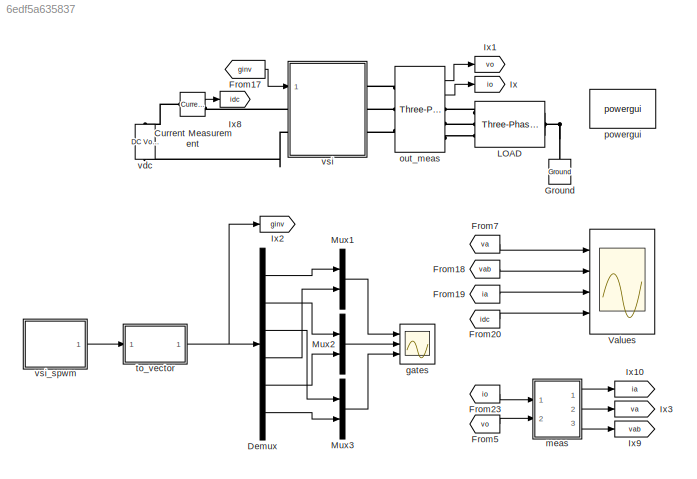
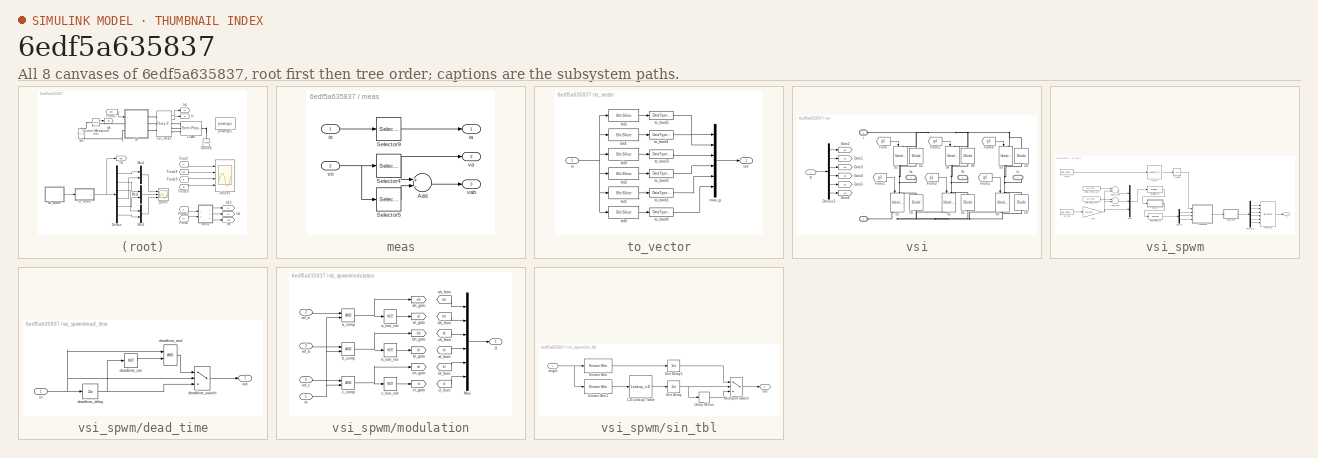
[diagram: thumbnail index - all 8 canvases of the model, root first then tree order]
MODEL slx_6edf5a635837
KIND model
CONFIG AbsTol = auto
CONFIG EnableMultiTasking = off
CONFIG FixedStep = cfg.fpga.ts
CONFIG InitFcn = vsi_spwm_config;
CONFIG MaxStep = auto
CONFIG MinStep = auto
CONFIG PreLoadFcn = vsi_spwm_config;
CONFIG RelTol = 1e-3
CONFIG SampleTimeConstraint = Unconstrained
CONFIG Solver = FixedStepDiscrete
CONFIG SolverName = FixedStepDiscrete
CONFIG StartTime = 0.0
CONFIG StopTime = 2/cfg.fl
BLOCK [Reference] Current Measurement  REF=powerlib/Measurements/Current Measurement
  Ports = [0, 1, 0, 0, 0, 1, 1]
  SourceBlock = powerlib/Measurements/Current Measurement
  SourceProductBaseCode = PS
  SourceProductName = Simscape Power Systems
  SourceType = Current Measurement
  UserDataPersistent = on
BLOCK [Demux] Demux
  DisplayOption = bar
  Outputs = 6
  Ports = [1, 6]
BLOCK [From] From17
  GotoTag = ginv
BLOCK [From] From18
  GotoTag = vab
BLOCK [From] From19
  GotoTag = ia
BLOCK [From] From20
  GotoTag = idc
BLOCK [From] From23
  GotoTag = io
BLOCK [From] From5
  GotoTag = vo
BLOCK [From] From7
  GotoTag = va
BLOCK [Reference] Ground  REF=powerlib/Elements/Ground
  Ports = [0, 0, 0, 0, 0, 1]
  SourceBlock = powerlib/Elements/Ground
  SourceProductBaseCode = PS
  SourceProductName = Simscape Power Systems
  SourceType = Ground
BLOCK [Goto] Ix
  GotoTag = io
BLOCK [Goto] Ix1
  GotoTag = vo
BLOCK [Goto] Ix10
  GotoTag = ia
BLOCK [Goto] Ix2
  GotoTag = ginv
BLOCK [Goto] Ix3
  GotoTag = va
BLOCK [Goto] Ix8
  GotoTag = idc
BLOCK [Goto] Ix9
  GotoTag = vab
BLOCK [Reference] LOAD  REF=powerlib/Elements/Three-Phase
Series RLC Branch
  AttributesFormatString = \n
  Ports = [0, 0, 0, 0, 0, 3, 3]
  SourceBlock = powerlib/Elements/Three-Phase\nSeries RLC Branch
  SourceProductBaseCode = PS
  SourceProductName = Simscape Power Systems
  SourceType = Three-Phase Series RLC Branch
BLOCK [Mux] Mux1
  DisplayOption = bar
  Inputs = 2
  Ports = [2, 1]
BLOCK [Mux] Mux2
  DisplayOption = bar
  Inputs = 2
  Ports = [2, 1]
BLOCK [Mux] Mux3
  DisplayOption = bar
  Inputs = 2
  Ports = [2, 1]
BLOCK [Scope] Values
  Floating = off
  NumInputPorts = 4
  Ports = [4]
  ScopeSpecificationString = Simulink.scopes.TimeScopeBlockCfg('CurrentConfiguration', extmgr.ConfigurationSet(extmgr.Configuration('Core','General UI',true),extmgr.Configuration('Core','Source UI',true),extmgr.Configuration('Sources','WiredSimulink',true,'DataLoggingVariableName','ScopeData1'),extmgr.Configuration('Visuals','Time Domain',true,'SerializedDisplays',{struct('MinYLimReal','-83.33158','MaxYLimReal','83.33159','YL...<+3460ch>
BLOCK [Scope] gates
  Floating = off
  NumInputPorts = 3
  Ports = [3]
  ScopeSpecificationString = Simulink.scopes.TimeScopeBlockCfg('CurrentConfiguration', extmgr.ConfigurationSet(extmgr.Configuration('Core','General UI',true),extmgr.Configuration('Core','Source UI',true),extmgr.Configuration('Sources','WiredSimulink',true,'DataLoggingVariableName','ScopeData2'),extmgr.Configuration('Visuals','Time Domain',true,'SerializedDisplays',{struct('MinYLimReal','-0.125','MaxYLimReal','1.125','YLabelRe...<+2784ch>
BLOCK [SubSystem] meas
  Ports = [2, 3]
  RequestExecContextInheritance = off
BLOCK [Sum] meas/Add
  InputSameDT = off
  Inputs = +-
  OutDataTypeStr = Inherit: Inherit via internal rule
  Ports = [2, 1]
  SaturateOnIntegerOverflow = off
BLOCK [Selector] meas/Selector4
  IndexOptions = Index vector (dialog)
  Indices = 1
  InputPortWidth = 3
  OutputSizes = 1
  Ports = [1, 1]
BLOCK [Selector] meas/Selector5
  IndexOptions = Index vector (dialog)
  Indices = 2
  InputPortWidth = 3
  OutputSizes = 1
  Ports = [1, 1]
BLOCK [Selector] meas/Selector9
  IndexOptions = Index vector (dialog)
  Indices = 1
  InputPortWidth = 3
  OutputSizes = 1
  Ports = [1, 1]
BLOCK [Outport] meas/ia
  IconDisplay = Port number
BLOCK [Inport] meas/io
  IconDisplay = Port number
BLOCK [Outport] meas/va
  IconDisplay = Port number
  Port = 2
BLOCK [Outport] meas/vab
  IconDisplay = Port number
  Port = 3
BLOCK [Inport] meas/vo
  IconDisplay = Port number
  Port = 2
BLOCK [Reference] out_meas  REF=powerlib/Measurements/Three-Phase
V-I Measurement
  Ports = [0, 2, 0, 0, 0, 3, 3]
  SourceBlock = powerlib/Measurements/Three-Phase\nV-I Measurement
  SourceProductBaseCode = PS
  SourceProductName = Simscape Power Systems
  SourceType = Three-Phase VI Measurement
BLOCK [Reference] powergui  REF=powerlib/powergui
  Ports = []
  Priority = 1
  SourceBlock = powerlib/powergui
  SourceProductBaseCode = PS
  SourceProductName = Simscape Power Systems
  SourceType = PSB option menu block
BLOCK [SubSystem] to_vector
  Ports = [1, 1]
  RequestExecContextInheritance = off
BLOCK [Reference] to_vector/bit0  REF=hdlsllib/Logic and Bit
Operations/Bit Slice
  Ports = [1, 1]
  SourceBlock = hdlsllib/Logic and Bit\nOperations/Bit Slice
  SourceProductBaseCode = HD
  SourceProductName = HDL Coder
  SourceType = Bit Slice
BLOCK [Reference] to_vector/bit1  REF=hdlsllib/Logic and Bit
Operations/Bit Slice
  Ports = [1, 1]
  SourceBlock = hdlsllib/Logic and Bit\nOperations/Bit Slice
  SourceProductBaseCode = HD
  SourceProductName = HDL Coder
  SourceType = Bit Slice
BLOCK [Reference] to_vector/bit2  REF=hdlsllib/Logic and Bit
Operations/Bit Slice
  Ports = [1, 1]
  SourceBlock = hdlsllib/Logic and Bit\nOperations/Bit Slice
  SourceProductBaseCode = HD
  SourceProductName = HDL Coder
  SourceType = Bit Slice
BLOCK [Reference] to_vector/bit3  REF=hdlsllib/Logic and Bit
Operations/Bit Slice
  Ports = [1, 1]
  SourceBlock = hdlsllib/Logic and Bit\nOperations/Bit Slice
  SourceProductBaseCode = HD
  SourceProductName = HDL Coder
  SourceType = Bit Slice
BLOCK [Reference] to_vector/bit4  REF=hdlsllib/Logic and Bit
Operations/Bit Slice
  Ports = [1, 1]
  SourceBlock = hdlsllib/Logic and Bit\nOperations/Bit Slice
  SourceProductBaseCode = HD
  SourceProductName = HDL Coder
  SourceType = Bit Slice
BLOCK [Reference] to_vector/bit5  REF=hdlsllib/Logic and Bit
Operations/Bit Slice
  Ports = [1, 1]
  SourceBlock = hdlsllib/Logic and Bit\nOperations/Bit Slice
  SourceProductBaseCode = HD
  SourceProductName = HDL Coder
  SourceType = Bit Slice
BLOCK [Inport] to_vector/in
  IconDisplay = Port number
BLOCK [Mux] to_vector/mux_g
  DisplayOption = bar
  Inputs = 6
  Ports = [6, 1]
BLOCK [Outport] to_vector/out
  IconDisplay = Port number
BLOCK [DataTypeConversion] to_vector/to_bool0
  OutDataTypeStr = boolean
  RndMeth = Floor
  SaturateOnIntegerOverflow = off
BLOCK [DataTypeConversion] to_vector/to_bool1
  OutDataTypeStr = boolean
  RndMeth = Floor
  SaturateOnIntegerOverflow = off
BLOCK [DataTypeConversion] to_vector/to_bool2
  OutDataTypeStr = boolean
  RndMeth = Floor
  SaturateOnIntegerOverflow = off
BLOCK [DataTypeConversion] to_vector/to_bool3
  OutDataTypeStr = boolean
  RndMeth = Floor
  SaturateOnIntegerOverflow = off
BLOCK [DataTypeConversion] to_vector/to_bool4
  OutDataTypeStr = boolean
  RndMeth = Floor
  SaturateOnIntegerOverflow = off
BLOCK [DataTypeConversion] to_vector/to_bool5
  OutDataTypeStr = boolean
  RndMeth = Floor
  SaturateOnIntegerOverflow = off
BLOCK [Reference] vdc  REF=powerlib/Electrical
Sources/DC Voltage Source
  Ports = [0, 0, 0, 0, 0, 1, 1]
  SourceBlock = powerlib/Electrical\nSources/DC Voltage Source
  SourceProductBaseCode = PS
  SourceProductName = Simscape Power Systems
  SourceType = DC Voltage Source
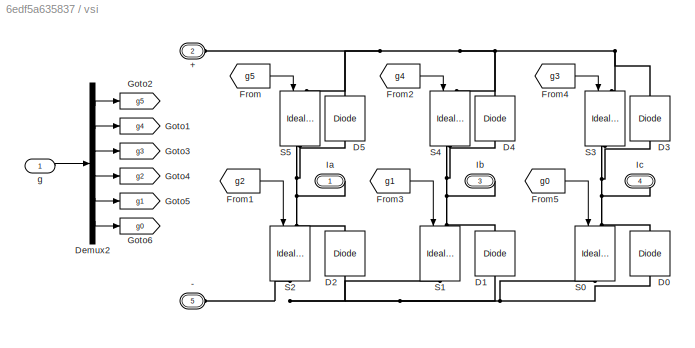
BLOCK [SubSystem] vsi
  Ports = [1, 0, 0, 0, 0, 2, 3]
  RequestExecContextInheritance = off
BLOCK [PMIOPort] vsi/+
  Port = 2
  Side = Left
BLOCK [PMIOPort] vsi/-
  Port = 5
  Side = Left
BLOCK [Reference] vsi/D0  REF=powerlib/Power
Electronics/Diode
  Ports = [0, 0, 0, 0, 0, 1, 1]
  SourceBlock = powerlib/Power\nElectronics/Diode
  SourceProductBaseCode = PS
  SourceProductName = Simscape Power Systems
  SourceType = Diode
BLOCK [Reference] vsi/D1  REF=powerlib/Power
Electronics/Diode
  Ports = [0, 0, 0, 0, 0, 1, 1]
  SourceBlock = powerlib/Power\nElectronics/Diode
  SourceProductBaseCode = PS
  SourceProductName = Simscape Power Systems
  SourceType = Diode
BLOCK [Reference] vsi/D2  REF=powerlib/Power
Electronics/Diode
  Ports = [0, 0, 0, 0, 0, 1, 1]
  SourceBlock = powerlib/Power\nElectronics/Diode
  SourceProductBaseCode = PS
  SourceProductName = Simscape Power Systems
  SourceType = Diode
BLOCK [Reference] vsi/D3  REF=powerlib/Power
Electronics/Diode
  Ports = [0, 0, 0, 0, 0, 1, 1]
  SourceBlock = powerlib/Power\nElectronics/Diode
  SourceProductBaseCode = PS
  SourceProductName = Simscape Power Systems
  SourceType = Diode
BLOCK [Reference] vsi/D4  REF=powerlib/Power
Electronics/Diode
  Ports = [0, 0, 0, 0, 0, 1, 1]
  SourceBlock = powerlib/Power\nElectronics/Diode
  SourceProductBaseCode = PS
  SourceProductName = Simscape Power Systems
  SourceType = Diode
BLOCK [Reference] vsi/D5  REF=powerlib/Power
Electronics/Diode
  Ports = [0, 0, 0, 0, 0, 1, 1]
  SourceBlock = powerlib/Power\nElectronics/Diode
  SourceProductBaseCode = PS
  SourceProductName = Simscape Power Systems
  SourceType = Diode
BLOCK [Demux] vsi/Demux2
  DisplayOption = bar
  Outputs = 6
  Ports = [1, 6]
BLOCK [From] vsi/From
  GotoTag = g5
BLOCK [From] vsi/From1
  GotoTag = g2
BLOCK [From] vsi/From2
  GotoTag = g4
BLOCK [From] vsi/From3
  GotoTag = g1
BLOCK [From] vsi/From4
  GotoTag = g3
BLOCK [From] vsi/From5
  GotoTag = g0
BLOCK [Goto] vsi/Goto1
  GotoTag = g4
BLOCK [Goto] vsi/Goto2
  GotoTag = g5
BLOCK [Goto] vsi/Goto3
  GotoTag = g3
BLOCK [Goto] vsi/Goto4
  GotoTag = g2
BLOCK [Goto] vsi/Goto5
  GotoTag = g1
BLOCK [Goto] vsi/Goto6
  GotoTag = g0
BLOCK [PMIOPort] vsi/Ia
  Side = Right
BLOCK [PMIOPort] vsi/Ib
  Port = 3
  Side = Right
BLOCK [PMIOPort] vsi/Ic
  Port = 4
  Side = Right
BLOCK [Reference] vsi/S0  REF=powerlib/Power
Electronics/Ideal Switch
  Ports = [1, 0, 0, 0, 0, 1, 1]
  SourceBlock = powerlib/Power\nElectronics/Ideal Switch
  SourceProductBaseCode = PS
  SourceProductName = Simscape Power Systems
  SourceType = Ideal Switch
BLOCK [Reference] vsi/S1  REF=powerlib/Power
Electronics/Ideal Switch
  Ports = [1, 0, 0, 0, 0, 1, 1]
  SourceBlock = powerlib/Power\nElectronics/Ideal Switch
  SourceProductBaseCode = PS
  SourceProductName = Simscape Power Systems
  SourceType = Ideal Switch
BLOCK [Reference] vsi/S2  REF=powerlib/Power
Electronics/Ideal Switch
  Ports = [1, 0, 0, 0, 0, 1, 1]
  SourceBlock = powerlib/Power\nElectronics/Ideal Switch
  SourceProductBaseCode = PS
  SourceProductName = Simscape Power Systems
  SourceType = Ideal Switch
BLOCK [Reference] vsi/S3  REF=powerlib/Power
Electronics/Ideal Switch
  Ports = [1, 0, 0, 0, 0, 1, 1]
  SourceBlock = powerlib/Power\nElectronics/Ideal Switch
  SourceProductBaseCode = PS
  SourceProductName = Simscape Power Systems
  SourceType = Ideal Switch
BLOCK [Reference] vsi/S4  REF=powerlib/Power
Electronics/Ideal Switch
  Ports = [1, 0, 0, 0, 0, 1, 1]
  SourceBlock = powerlib/Power\nElectronics/Ideal Switch
  SourceProductBaseCode = PS
  SourceProductName = Simscape Power Systems
  SourceType = Ideal Switch
BLOCK [Reference] vsi/S5  REF=powerlib/Power
Electronics/Ideal Switch
  Ports = [1, 0, 0, 0, 0, 1, 1]
  SourceBlock = powerlib/Power\nElectronics/Ideal Switch
  SourceProductBaseCode = PS
  SourceProductName = Simscape Power Systems
  SourceType = Ideal Switch
BLOCK [Inport] vsi/g
  IconDisplay = Port number
BLOCK [SubSystem] vsi_spwm
  Ports = [0, 1]
  RequestExecContextInheritance = off
BLOCK [Demux] vsi_spwm/Demux
  DisplayOption = bar
  Outputs = 3
  Ports = [1, 3]
BLOCK [Reference] vsi_spwm/Deserializer1D  REF=hdlsllib/HDL Operations/Deserializer1D
  Ports = [1, 1]
  SourceBlock = hdlsllib/HDL Operations/Deserializer1D
  SourceProductBaseCode = HD
  SourceProductName = HDL Coder
  SourceType = Deserializer1D
BLOCK [Gain] vsi_spwm/Gain
  Gain = cfg.ref.factor
  OutDataTypeStr = fixdt(0,cfg.ref.n,0)
  ParamDataTypeStr = Inherit: Inherit via internal rule
  SaturateOnIntegerOverflow = off
BLOCK [Mux] vsi_spwm/Mux
  DisplayOption = bar
  Inputs = 3
  Ports = [3, 1]
BLOCK [Reference] vsi_spwm/Serializer1D  REF=hdlsllib/HDL Operations/Serializer1D
  Ports = [1, 1]
  SourceBlock = hdlsllib/HDL Operations/Serializer1D
  SourceProductBaseCode = HD
  SourceProductName = HDL Coder
  SourceType = Serializer1D
BLOCK [Sum] vsi_spwm/add_m120
  AccumDataTypeStr = Inherit: Same as first input
  InputSameDT = off
  OutDataTypeStr = Inherit: Same as accumulator
  Ports = [2, 1]
  SaturateOnIntegerOverflow = off
BLOCK [Sum] vsi_spwm/add_p120
  AccumDataTypeStr = Inherit: Same as first input
  InputSameDT = off
  OutDataTypeStr = Inherit: Same as accumulator
  Ports = [2, 1]
  SaturateOnIntegerOverflow = off
BLOCK [Reference] vsi_spwm/concat_g  REF=hdlsllib/Logic and Bit
Operations/Bit Concat
  Ports = [6, 1]
  SourceBlock = hdlsllib/Logic and Bit\nOperations/Bit Concat
  SourceProductBaseCode = HD
  SourceProductName = HDL Coder
  SourceType = Bit Concat
BLOCK [SubSystem] vsi_spwm/dead_time
  Ports = [1, 1]
  RequestExecContextInheritance = off
BLOCK [Logic] vsi_spwm/dead_time/deadtime_and
  AllPortsSameDT = off
  OutDataTypeStr = boolean
  Ports = [2, 1]
BLOCK [UnitDelay] vsi_spwm/dead_time/deadtime_delay
  InputProcessing = Elements as channels (sample based)
  SampleTime = -1
BLOCK [Logic] vsi_spwm/dead_time/deadtime_not
  AllPortsSameDT = off
  Operator = NOT
  OutDataTypeStr = boolean
  Ports = [1, 1]
BLOCK [MultiPortSwitch] vsi_spwm/dead_time/deadtime_switch
  DataPortOrder = Zero-based contiguous
  InputSameDT = off
  Inputs = 2
  Ports = [3, 1]
  SaturateOnIntegerOverflow = off
  zeroidx = on
BLOCK [Inport] vsi_spwm/dead_time/in
  IconDisplay = Port number
BLOCK [Outport] vsi_spwm/dead_time/out
  IconDisplay = Port number
BLOCK [Constant] vsi_spwm/delay_minus_120
  OutDataTypeStr = fixdt(0,cfg.ref.n,0)
  SampleTime = -1
  Value = 2/3*2^cfg.ref.n
BLOCK [Constant] vsi_spwm/delay_plus_smd
  OutDataTypeStr = fixdt(0,cfg.ref.n,0)
  SampleTime = -1
  Value = 1/3*2^cfg.ref.n
BLOCK [Demux] vsi_spwm/demux_g
  DisplayOption = bar
  Outputs = 6
  Ports = [1, 6]
BLOCK [Outport] vsi_spwm/g
  IconDisplay = Port number
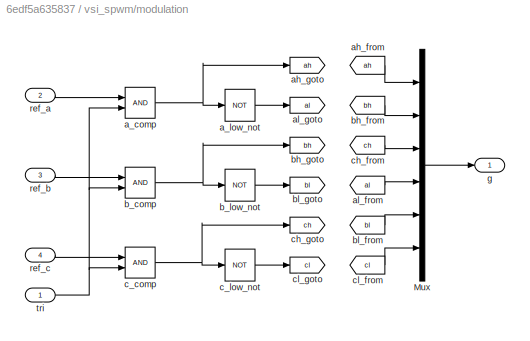
BLOCK [SubSystem] vsi_spwm/modulation
  Ports = [4, 1]
  RequestExecContextInheritance = off
BLOCK [Mux] vsi_spwm/modulation/Mux
  DisplayOption = bar
  Inputs = 6
  Ports = [6, 1]
BLOCK [RelationalOperator] vsi_spwm/modulation/a_comp
  InputSameDT = off
  OutDataTypeStr = boolean
  Ports = [2, 1]
BLOCK [Logic] vsi_spwm/modulation/a_low_not
  AllPortsSameDT = off
  Operator = NOT
  OutDataTypeStr = boolean
  Ports = [1, 1]
BLOCK [From] vsi_spwm/modulation/ah_from
  GotoTag = ah
BLOCK [Goto] vsi_spwm/modulation/ah_goto
  GotoTag = ah
BLOCK [From] vsi_spwm/modulation/al_from
  GotoTag = al
BLOCK [Goto] vsi_spwm/modulation/al_goto
  GotoTag = al
BLOCK [RelationalOperator] vsi_spwm/modulation/b_comp
  InputSameDT = off
  OutDataTypeStr = boolean
  Ports = [2, 1]
BLOCK [Logic] vsi_spwm/modulation/b_low_not
  AllPortsSameDT = off
  Operator = NOT
  OutDataTypeStr = boolean
  Ports = [1, 1]
BLOCK [From] vsi_spwm/modulation/bh_from
  GotoTag = bh
BLOCK [Goto] vsi_spwm/modulation/bh_goto
  GotoTag = bh
BLOCK [From] vsi_spwm/modulation/bl_from
  GotoTag = bl
BLOCK [Goto] vsi_spwm/modulation/bl_goto
  GotoTag = bl
BLOCK [RelationalOperator] vsi_spwm/modulation/c_comp
  InputSameDT = off
  OutDataTypeStr = boolean
  Ports = [2, 1]
BLOCK [Logic] vsi_spwm/modulation/c_low_not
  AllPortsSameDT = off
  Operator = NOT
  OutDataTypeStr = boolean
  Ports = [1, 1]
BLOCK [From] vsi_spwm/modulation/ch_from
  GotoTag = ch
BLOCK [Goto] vsi_spwm/modulation/ch_goto
  GotoTag = ch
BLOCK [From] vsi_spwm/modulation/cl_from
  GotoTag = cl
BLOCK [Goto] vsi_spwm/modulation/cl_goto
  GotoTag = cl
BLOCK [Outport] vsi_spwm/modulation/g
  IconDisplay = Port number
BLOCK [Inport] vsi_spwm/modulation/ref_a
  IconDisplay = Port number
  Port = 2
BLOCK [Inport] vsi_spwm/modulation/ref_b
  IconDisplay = Port number
  Port = 3
BLOCK [Inport] vsi_spwm/modulation/ref_c
  IconDisplay = Port number
  Port = 4
BLOCK [Inport] vsi_spwm/modulation/tri
  IconDisplay = Port number
BLOCK [Reference] vsi_spwm/ref_cnt  REF=hdlsllib/Sources/HDL Counter
  Ports = [0, 1]
  SourceBlock = hdlsllib/Sources/HDL Counter
  SourceProductBaseCode = HD
  SourceProductName = HDL Coder
  SourceType = HDL Counter
BLOCK [SubSystem] vsi_spwm/sin_tbl
  Ports = [1, 1]
  RequestExecContextInheritance = off
BLOCK [Lookup_n-D] vsi_spwm/sin_tbl/1-D Lookup Table
  BreakpointsForDimension1 = [0:length(cfg.ref.data)-1]
  BreakpointsForDimension1FirstPoint = 10
  BreakpointsForDimension1Spacing = 12
  BreakpointsForDimension2FirstPoint = 10
  BreakpointsForDimension2Spacing = 12
  DiagnosticForOutOfRangeInput = Error
  IndexSearchMethod = Evenly spaced points
  InternalRulePriority = Speed
  InterpMethod = Flat
  NumberOfTableDimensions = 1
  OutDataTypeStr = fixdt(1,cfg.ref.out_n,cfg.ref.out_n_bp)
  Ports = [1, 1]
  RndMeth = Simplest
  Table = cfg.ref.data
BLOCK [Reference] vsi_spwm/sin_tbl/Extract Bits  REF=simulink/Logic and Bit
Operations/Extract Bits
  Ports = [1, 1]
  SourceBlock = simulink/Logic and Bit\nOperations/Extract Bits
  SourceProductBaseCode = SL
  SourceProductName = Simulink
  SourceType = Extract Bits
BLOCK [Reference] vsi_spwm/sin_tbl/Extract Bits1  REF=simulink/Logic and Bit
Operations/Extract Bits
  Ports = [1, 1]
  SourceBlock = simulink/Logic and Bit\nOperations/Extract Bits
  SourceProductBaseCode = SL
  SourceProductName = Simulink
  SourceType = Extract Bits
BLOCK [MultiPortSwitch] vsi_spwm/sin_tbl/Multiport Switch
  DataPortOrder = Zero-based contiguous
  InputSameDT = off
  Inputs = 2
  Ports = [3, 1]
  SaturateOnIntegerOverflow = off
  zeroidx = on
BLOCK [UnaryMinus] vsi_spwm/sin_tbl/Unary Minus
BLOCK [UnitDelay] vsi_spwm/sin_tbl/Unit Delay
  InputProcessing = Elements as channels (sample based)
  SampleTime = -1
BLOCK [UnitDelay] vsi_spwm/sin_tbl/Unit Delay1
  InputProcessing = Elements as channels (sample based)
  SampleTime = -1
BLOCK [Inport] vsi_spwm/sin_tbl/angle
  IconDisplay = Port number
BLOCK [Outport] vsi_spwm/sin_tbl/out
  IconDisplay = Port number
BLOCK [Reference] vsi_spwm/tri_cnt  REF=hdlsllib/Sources/HDL Counter
  Ports = [0, 1]
  SourceBlock = hdlsllib/Sources/HDL Counter
  SourceProductBaseCode = HD
  SourceProductName = HDL Coder
  SourceType = HDL Counter
BLOCK [UnitDelay] vsi_spwm/tri_delay
  InputProcessing = Elements as channels (sample based)
  SampleTime = -1
BLOCK [Lookup_n-D] vsi_spwm/tri_tbl
  BreakpointsForDimension1 = [0:length(cfg.tri.data)-1]
  BreakpointsForDimension1FirstPoint = 10
  BreakpointsForDimension1Spacing = 12
  BreakpointsForDimension2FirstPoint = 10
  BreakpointsForDimension2Spacing = 12
  DiagnosticForOutOfRangeInput = Error
  IndexSearchMethod = Evenly spaced points
  InternalRulePriority = Speed
  InterpMethod = Flat
  NumberOfTableDimensions = 1
  OutDataTypeStr = fixdt(1,cfg.tri.out_n,0)
  Ports = [1, 1]
  RndMeth = Simplest
  Table = cfg.tri.data
LINE Current Measurement:1 -> Ix8:1
LINE Demux:1 -> Mux1:1
LINE Demux:2 -> Mux2:1
LINE Demux:3 -> Mux3:1
LINE Demux:4 -> Mux1:2
LINE Demux:5 -> Mux2:2
LINE Demux:6 -> Mux3:2
LINE From17:1 -> vsi:1
LINE From18:1 -> Values:2
LINE From19:1 -> Values:3
LINE From20:1 -> Values:4
LINE From23:1 -> meas:1
LINE From5:1 -> meas:2
LINE From7:1 -> Values:1
LINE Mux1:1 -> gates:1
LINE Mux2:1 -> gates:2
LINE Mux3:1 -> gates:3
LINE meas/Add:1 -> meas/vab:1
NET meas/Selector4:1 -> meas/Add:1, meas/va:1
LINE meas/Selector5:1 -> meas/Add:2
LINE meas/Selector9:1 -> meas/ia:1
LINE meas/io:1 -> meas/Selector9:1
NET meas/vo:1 -> meas/Selector4:1, meas/Selector5:1
LINE meas:1 -> Ix10:1
LINE meas:2 -> Ix3:1
LINE meas:3 -> Ix9:1
LINE out_meas:1 -> Ix1:1
LINE out_meas:2 -> Ix:1
LINE to_vector/bit0:1 -> to_vector/to_bool0:1
LINE to_vector/bit1:1 -> to_vector/to_bool1:1
LINE to_vector/bit2:1 -> to_vector/to_bool2:1
LINE to_vector/bit3:1 -> to_vector/to_bool3:1
LINE to_vector/bit4:1 -> to_vector/to_bool4:1
LINE to_vector/bit5:1 -> to_vector/to_bool5:1
NET to_vector/in:1 -> to_vector/bit0:1, to_vector/bit1:1, to_vector/bit2:1, to_vector/bit3:1, to_vector/bit4:1, to_vector/bit5:1
LINE to_vector/mux_g:1 -> to_vector/out:1
LINE to_vector/to_bool0:1 -> to_vector/mux_g:6
LINE to_vector/to_bool1:1 -> to_vector/mux_g:5
LINE to_vector/to_bool2:1 -> to_vector/mux_g:4
LINE to_vector/to_bool3:1 -> to_vector/mux_g:3
LINE to_vector/to_bool4:1 -> to_vector/mux_g:2
LINE to_vector/to_bool5:1 -> to_vector/mux_g:1
NET to_vector:1 -> Demux:1, Ix2:1
LINE vsi/Demux2:1 -> vsi/Goto2:1
LINE vsi/Demux2:2 -> vsi/Goto1:1
LINE vsi/Demux2:3 -> vsi/Goto3:1
LINE vsi/Demux2:4 -> vsi/Goto4:1
LINE vsi/Demux2:5 -> vsi/Goto5:1
LINE vsi/Demux2:6 -> vsi/Goto6:1
LINE vsi/From1:1 -> vsi/S2:1
LINE vsi/From2:1 -> vsi/S4:1
LINE vsi/From3:1 -> vsi/S1:1
LINE vsi/From4:1 -> vsi/S3:1
LINE vsi/From5:1 -> vsi/S0:1
LINE vsi/From:1 -> vsi/S5:1
LINE vsi/g:1 -> vsi/Demux2:1
LINE vsi_spwm/Demux:1 -> vsi_spwm/modulation:2
LINE vsi_spwm/Demux:2 -> vsi_spwm/modulation:3
LINE vsi_spwm/Demux:3 -> vsi_spwm/modulation:4
LINE vsi_spwm/Deserializer1D:1 -> vsi_spwm/Demux:1
NET vsi_spwm/Gain:1 -> vsi_spwm/Mux:3, vsi_spwm/add_m120:2, vsi_spwm/add_p120:2
LINE vsi_spwm/Mux:1 -> vsi_spwm/Serializer1D:1
LINE vsi_spwm/Serializer1D:1 -> vsi_spwm/sin_tbl:1
LINE vsi_spwm/add_m120:1 -> vsi_spwm/Mux:1
LINE vsi_spwm/add_p120:1 -> vsi_spwm/Mux:2
LINE vsi_spwm/concat_g:1 -> vsi_spwm/g:1
LINE vsi_spwm/dead_time/deadtime_and:1 -> vsi_spwm/dead_time/deadtime_switch:1
NET vsi_spwm/dead_time/deadtime_delay:1 -> vsi_spwm/dead_time/deadtime_not:1, vsi_spwm/dead_time/deadtime_switch:3
LINE vsi_spwm/dead_time/deadtime_not:1 -> vsi_spwm/dead_time/deadtime_and:2
LINE vsi_spwm/dead_time/deadtime_switch:1 -> vsi_spwm/dead_time/out:1
NET vsi_spwm/dead_time/in:1 -> vsi_spwm/dead_time/deadtime_and:1, vsi_spwm/dead_time/deadtime_delay:1, vsi_spwm/dead_time/deadtime_switch:2
LINE vsi_spwm/dead_time:1 -> vsi_spwm/demux_g:1
LINE vsi_spwm/delay_minus_120:1 -> vsi_spwm/add_m120:1
LINE vsi_spwm/delay_plus_smd:1 -> vsi_spwm/add_p120:1
LINE vsi_spwm/demux_g:1 -> vsi_spwm/concat_g:1
LINE vsi_spwm/demux_g:2 -> vsi_spwm/concat_g:2
LINE vsi_spwm/demux_g:3 -> vsi_spwm/concat_g:3
LINE vsi_spwm/demux_g:4 -> vsi_spwm/concat_g:4
LINE vsi_spwm/demux_g:5 -> vsi_spwm/concat_g:5
LINE vsi_spwm/demux_g:6 -> vsi_spwm/concat_g:6
LINE vsi_spwm/modulation/Mux:1 -> vsi_spwm/modulation/g:1
NET vsi_spwm/modulation/a_comp:1 -> vsi_spwm/modulation/a_low_not:1, vsi_spwm/modulation/ah_goto:1
LINE vsi_spwm/modulation/a_low_not:1 -> vsi_spwm/modulation/al_goto:1
LINE vsi_spwm/modulation/ah_from:1 -> vsi_spwm/modulation/Mux:1
LINE vsi_spwm/modulation/al_from:1 -> vsi_spwm/modulation/Mux:4
NET vsi_spwm/modulation/b_comp:1 -> vsi_spwm/modulation/b_low_not:1, vsi_spwm/modulation/bh_goto:1
LINE vsi_spwm/modulation/b_low_not:1 -> vsi_spwm/modulation/bl_goto:1
LINE vsi_spwm/modulation/bh_from:1 -> vsi_spwm/modulation/Mux:2
LINE vsi_spwm/modulation/bl_from:1 -> vsi_spwm/modulation/Mux:5
NET vsi_spwm/modulation/c_comp:1 -> vsi_spwm/modulation/c_low_not:1, vsi_spwm/modulation/ch_goto:1
LINE vsi_spwm/modulation/c_low_not:1 -> vsi_spwm/modulation/cl_goto:1
LINE vsi_spwm/modulation/ch_from:1 -> vsi_spwm/modulation/Mux:3
LINE vsi_spwm/modulation/cl_from:1 -> vsi_spwm/modulation/Mux:6
LINE vsi_spwm/modulation/ref_a:1 -> vsi_spwm/modulation/a_comp:1
LINE vsi_spwm/modulation/ref_b:1 -> vsi_spwm/modulation/b_comp:1
LINE vsi_spwm/modulation/ref_c:1 -> vsi_spwm/modulation/c_comp:1
NET vsi_spwm/modulation/tri:1 -> vsi_spwm/modulation/a_comp:2, vsi_spwm/modulation/b_comp:2, vsi_spwm/modulation/c_comp:2
LINE vsi_spwm/modulation:1 -> vsi_spwm/dead_time:1
LINE vsi_spwm/ref_cnt:1 -> vsi_spwm/Gain:1
LINE vsi_spwm/sin_tbl/1-D Lookup Table:1 -> vsi_spwm/sin_tbl/Unit Delay:1
LINE vsi_spwm/sin_tbl/Extract Bits1:1 -> vsi_spwm/sin_tbl/1-D Lookup Table:1
LINE vsi_spwm/sin_tbl/Extract Bits:1 -> vsi_spwm/sin_tbl/Unit Delay1:1
LINE vsi_spwm/sin_tbl/Multiport Switch:1 -> vsi_spwm/sin_tbl/out:1
LINE vsi_spwm/sin_tbl/Unary Minus:1 -> vsi_spwm/sin_tbl/Multiport Switch:3
LINE vsi_spwm/sin_tbl/Unit Delay1:1 -> vsi_spwm/sin_tbl/Multiport Switch:1
NET vsi_spwm/sin_tbl/Unit Delay:1 -> vsi_spwm/sin_tbl/Multiport Switch:2, vsi_spwm/sin_tbl/Unary Minus:1
NET vsi_spwm/sin_tbl/angle:1 -> vsi_spwm/sin_tbl/Extract Bits1:1, vsi_spwm/sin_tbl/Extract Bits:1
LINE vsi_spwm/sin_tbl:1 -> vsi_spwm/Deserializer1D:1
LINE vsi_spwm/tri_cnt:1 -> vsi_spwm/tri_tbl:1
LINE vsi_spwm/tri_delay:1 -> vsi_spwm/modulation:1
LINE vsi_spwm/tri_tbl:1 -> vsi_spwm/tri_delay:1
LINE vsi_spwm:1 -> to_vector:1
PLINE Current Measurement:LConn1 -- vdc:RConn1
PLINE Current Measurement:RConn1 -- vsi:LConn1
PNET net1: Ground:LConn1 -- LOAD:RConn1 -- LOAD:RConn2 -- LOAD:RConn3
PLINE LOAD:LConn1 -- out_meas:RConn1
PLINE LOAD:LConn2 -- out_meas:RConn2
PLINE LOAD:LConn3 -- out_meas:RConn3
PLINE out_meas:LConn1 -- vsi:RConn1
PLINE out_meas:LConn2 -- vsi:RConn2
PLINE out_meas:LConn3 -- vsi:RConn3
PLINE vdc:LConn1 -- vsi:LConn2
PNET net2: vsi/+:RConn1 -- vsi/D3:RConn1 -- vsi/D4:RConn1 -- vsi/D5:RConn1 -- vsi/S3:LConn1 -- vsi/S4:LConn1 -- vsi/S5:LConn1
PNET net3: vsi/-:RConn1 -- vsi/D0:LConn1 -- vsi/D1:LConn1 -- vsi/D2:LConn1 -- vsi/S0:RConn1 -- vsi/S1:RConn1 -- vsi/S2:RConn1
PNET net4: vsi/D0:RConn1 -- vsi/D3:LConn1 -- vsi/Ic:RConn1 -- vsi/S0:LConn1 -- vsi/S3:RConn1
PNET net5: vsi/D1:RConn1 -- vsi/D4:LConn1 -- vsi/Ib:RConn1 -- vsi/S1:LConn1 -- vsi/S4:RConn1
PNET net6: vsi/D2:RConn1 -- vsi/D5:LConn1 -- vsi/Ia:RConn1 -- vsi/S2:LConn1 -- vsi/S5:RConn1
note: NET lines group one-source signal fan-out (src -> all destinations, sorted); 1:1 wires keep LINE; PNET lines group multi-terminal physical nets as a canonical sorted terminal list (undirected conserving connections); 2-terminal nets keep the pairwise PLINE form
